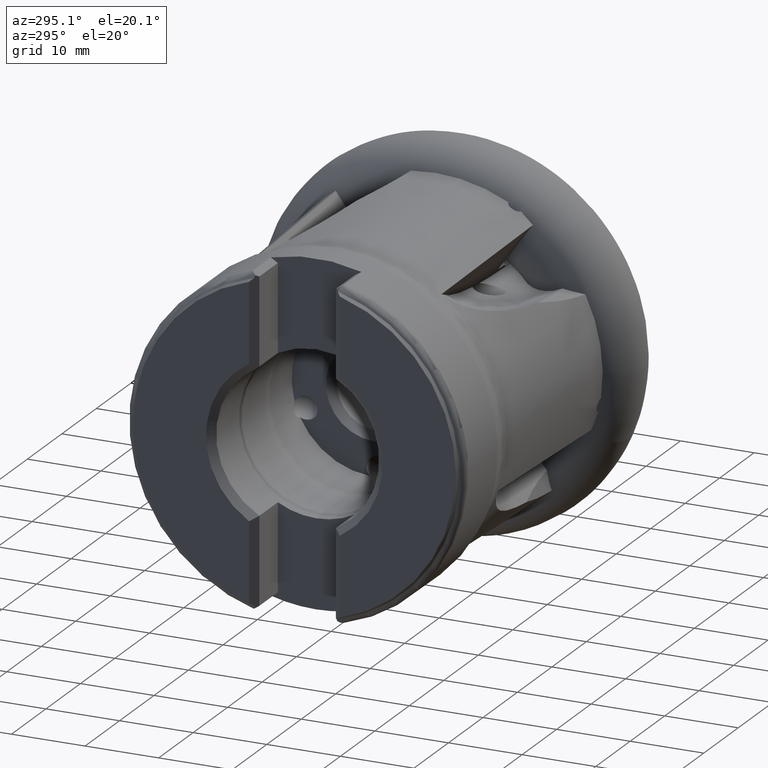
[diagram: clean part render]
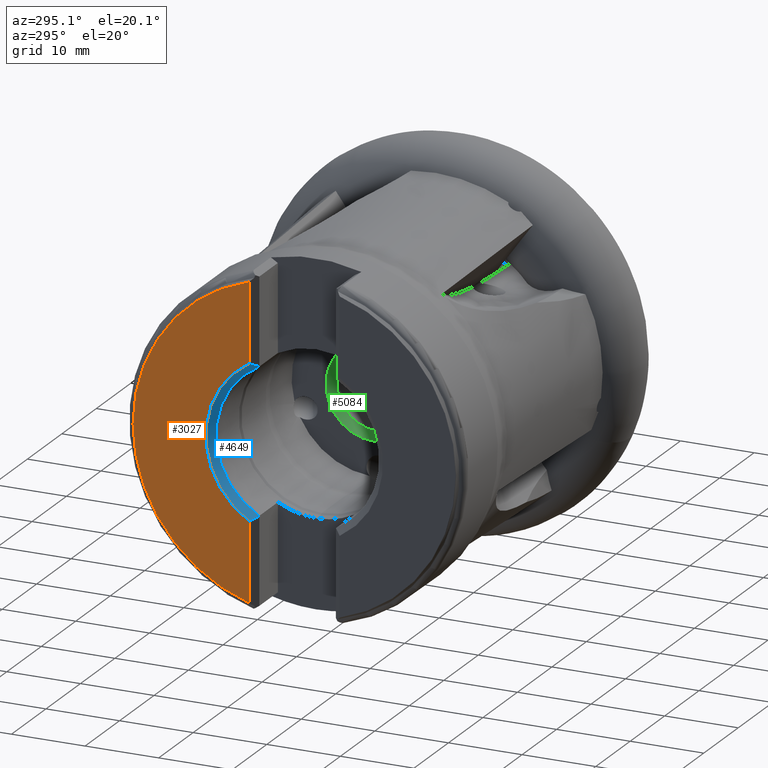
[diagram: same view with three faces highlighted in distinct colors, each labeled with its STEP entity id]
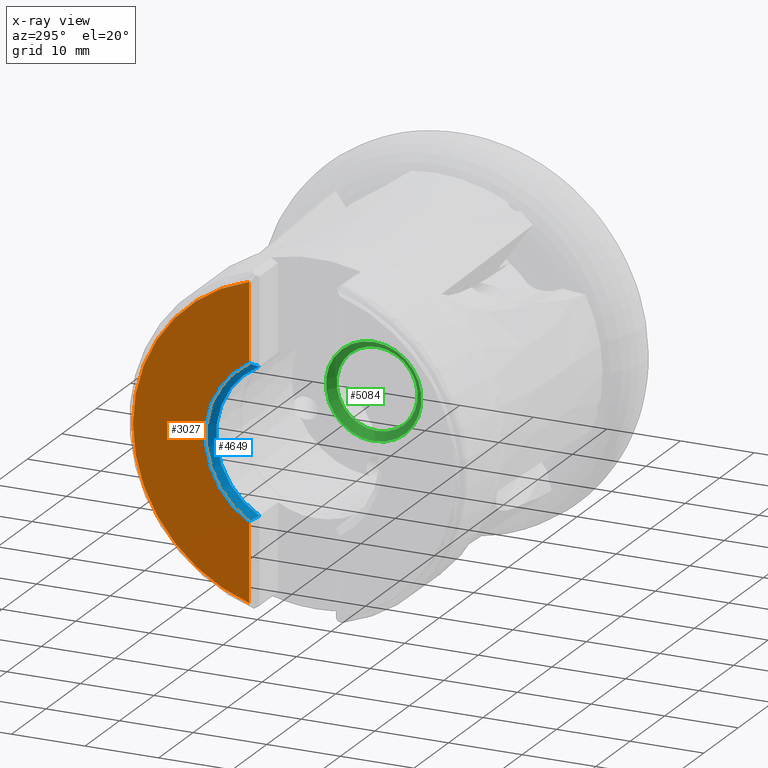
[diagram: x-ray of the same camera — body ghosted, the three highlighted faces saturated]
A machine part, auxiliary view with three faces highlighted in distinct colors.
The next image is the same camera in x-ray (body ghosted, the three faces saturated) — at least one of them is partly hidden behind the body in this view.
Their STEP definitions:

[orange] entity #3027 — the highlighted planar face has unit normal (1, 0, -0).
#241 = PLANE ( 'NONE',  #3022 ) ;
#437 = EDGE_CURVE ( 'NONE', #3511, #2054, #3896, .T. ) ;
#480 = VERTEX_POINT ( 'NONE', #2472 ) ;
#835 = EDGE_LOOP ( 'NONE', ( #4019, #2050, #2428, #1538 ) ) ;
#852 = CARTESIAN_POINT ( 'NONE',  ( -50.64099999999999800, -7.898033708983253300E-015, 0.0000000000000000000 ) ) ;
#1220 = DIRECTION ( 'NONE',  ( 0.0000000000000000000, 0.0000000000000000000, -1.000000000000000000 ) ) ;
#1470 = CARTESIAN_POINT ( 'NONE',  ( -50.64099999999999800, 6.150000000000013700, -30.00000000000000000 ) ) ;
#1538 = ORIENTED_EDGE ( 'NONE', *, *, #437, .F. ) ;
#1727 = CARTESIAN_POINT ( 'NONE',  ( -50.64099999999999800, 6.150000000000012800, -21.04196264864114600 ) ) ;
#2050 = ORIENTED_EDGE ( 'NONE', *, *, #4294, .F. ) ;
#2054 = VERTEX_POINT ( 'NONE', #1727 ) ;
#2091 = DIRECTION ( 'NONE',  ( -1.000000000000000000, 0.0000000000000000000, 0.0000000000000000000 ) ) ;
#2240 = EDGE_CURVE ( 'NONE', #480, #3511, #3275, .T. ) ;
#2267 = AXIS2_PLACEMENT_3D ( 'NONE', #4640, #3709, #2783 ) ;
#2362 = EDGE_CURVE ( 'NONE', #2545, #2054, #3985, .T. ) ;
#2428 = ORIENTED_EDGE ( 'NONE', *, *, #2362, .T. ) ;
#2472 = CARTESIAN_POINT ( 'NONE',  ( -50.64099999999999800, 6.150000000000013700, 10.33335013439494100 ) ) ;
#2522 = FACE_OUTER_BOUND ( 'NONE', #835, .T. ) ;
#2545 = VERTEX_POINT ( 'NONE', #2918 ) ;
#2652 = CARTESIAN_POINT ( 'NONE',  ( -50.64099999999999800, 0.0000000000000000000, 0.0000000000000000000 ) ) ;
#2657 = DIRECTION ( 'NONE',  ( 0.0000000000000000000, 0.0000000000000000000, -1.000000000000000000 ) ) ;
#2783 = DIRECTION ( 'NONE',  ( 0.0000000000000000000, 0.0000000000000000000, -1.000000000000000000 ) ) ;
#2881 = DIRECTION ( 'NONE',  ( -0.0000000000000000000, 0.0000000000000000000, -1.000000000000000000 ) ) ;
#2918 = CARTESIAN_POINT ( 'NONE',  ( -50.64099999999999800, 6.150000000000013700, 21.04196264864114600 ) ) ;
#3022 = AXIS2_PLACEMENT_3D ( 'NONE', #852, #3664, #2881 ) ;
#3027 = ADVANCED_FACE ( 'NONE', ( #2522 ), #241, .F. ) ;
#3205 = VECTOR ( 'NONE', #1220, 1000.000000000000000 ) ;
#3275 = CIRCLE ( 'NONE', #3296, 12.02500000000000400 ) ;
#3296 = AXIS2_PLACEMENT_3D ( 'NONE', #2652, #2091, #2657 ) ;
#3511 = VERTEX_POINT ( 'NONE', #4227 ) ;
#3664 = DIRECTION ( 'NONE',  ( 1.000000000000000000, 0.0000000000000000000, -0.0000000000000000000 ) ) ;
#3709 = DIRECTION ( 'NONE',  ( -1.000000000000000000, 0.0000000000000000000, 0.0000000000000000000 ) ) ;
#3896 = LINE ( 'NONE', #1470, #3205 ) ;
#3985 = CIRCLE ( 'NONE', #2267, 21.92228756555321900 ) ;
#4019 = ORIENTED_EDGE ( 'NONE', *, *, #2240, .F. ) ;
#4108 = DIRECTION ( 'NONE',  ( 0.0000000000000000000, 0.0000000000000000000, -1.000000000000000000 ) ) ;
#4227 = CARTESIAN_POINT ( 'NONE',  ( -50.64099999999999800, 6.150000000000012800, -10.33335013439494100 ) ) ;
#4294 = EDGE_CURVE ( 'NONE', #2545, #480, #4443, .T. ) ;
#4443 = LINE ( 'NONE', #4971, #4611 ) ;
#4611 = VECTOR ( 'NONE', #4108, 1000.000000000000000 ) ;
#4640 = CARTESIAN_POINT ( 'NONE',  ( -50.64099999999999800, 0.0000000000000000000, 0.0000000000000000000 ) ) ;
#4971 = CARTESIAN_POINT ( 'NONE',  ( -50.64099999999999800, 6.150000000000013700, -30.00000000000000000 ) ) ;

[blue] entity #4649 — the highlighted conical surface has half-angle 45 deg.
#10 = CARTESIAN_POINT ( 'NONE',  ( -49.69099999999999500, 0.0000000000000000000, 0.0000000000000000000 ) ) ;
#409 = DIRECTION ( 'NONE',  ( 1.000000000000000000, -0.0000000000000000000, -0.0000000000000000000 ) ) ;
#426 = ORIENTED_EDGE ( 'NONE', *, *, #2240, .T. ) ;
#480 = VERTEX_POINT ( 'NONE', #2472 ) ;
#515 = CARTESIAN_POINT ( 'NONE',  ( -50.32309013954434800, 5.832090139544361000, 10.15260328986867600 ) ) ;
#657 = DIRECTION ( 'NONE',  ( 0.0000000000000000000, 0.0000000000000000000, -1.000000000000000000 ) ) ;
#701 = CARTESIAN_POINT ( 'NONE',  ( -49.69099999999998800, 5.199999999999993100, 9.778324242936507800 ) ) ;
#1073 = CARTESIAN_POINT ( 'NONE',  ( -49.69099999999999500, 5.200000000000000200, -9.778324242936511400 ) ) ;
#1085 = CARTESIAN_POINT ( 'NONE',  ( -50.64099999999999800, 6.150000000000012800, -10.33335013439494100 ) ) ;
#1091 = CARTESIAN_POINT ( 'NONE',  ( -50.00636343124153900, 5.515363431241550700, -9.967800487793338600 ) ) ;
#1188 = CARTESIAN_POINT ( 'NONE',  ( -50.32309013954434800, 5.832090139544361800, -10.15260328986867600 ) ) ;
#1213 = B_SPLINE_CURVE_WITH_KNOTS ( 'NONE', 3,
 ( #1085, #1188, #1091, #1073 ),
 .UNSPECIFIED., .F., .F.,
 ( 4, 4 ),
 ( 7.649773688578097400E-005, 0.001530132222374792600 ),
 .UNSPECIFIED. ) ;
#1268 = CARTESIAN_POINT ( 'NONE',  ( -49.69099999999999500, 0.0000000000000000000, 0.0000000000000000000 ) ) ;
#1410 = CARTESIAN_POINT ( 'NONE',  ( -49.69099999999999500, 5.200000000000000200, -9.778324242936511400 ) ) ;
#1570 = B_SPLINE_CURVE_WITH_KNOTS ( 'NONE', 3,
 ( #701, #3247, #515, #2978 ),
 .UNSPECIFIED., .F., .F.,
 ( 4, 4 ),
 ( 3.072932524628260400E-007, 0.001453941778741487100 ),
 .UNSPECIFIED. ) ;
#1671 = ORIENTED_EDGE ( 'NONE', *, *, #3298, .T. ) ;
#1709 = DIRECTION ( 'NONE',  ( -1.000000000000000000, 0.0000000000000000000, 0.0000000000000000000 ) ) ;
#1910 = DIRECTION ( 'NONE',  ( 0.0000000000000000000, 0.0000000000000000000, 1.000000000000000000 ) ) ;
#2086 = EDGE_CURVE ( 'NONE', #3511, #3373, #1213, .T. ) ;
#2091 = DIRECTION ( 'NONE',  ( -1.000000000000000000, 0.0000000000000000000, 0.0000000000000000000 ) ) ;
#2093 = FACE_OUTER_BOUND ( 'NONE', #4203, .T. ) ;
#2240 = EDGE_CURVE ( 'NONE', #480, #3511, #3275, .T. ) ;
#2325 = AXIS2_PLACEMENT_3D ( 'NONE', #10, #1709, #1910 ) ;
#2472 = CARTESIAN_POINT ( 'NONE',  ( -50.64099999999999800, 6.150000000000013700, 10.33335013439494100 ) ) ;
#2518 = CIRCLE ( 'NONE', #3740, 11.07499999999999400 ) ;
#2534 = ORIENTED_EDGE ( 'NONE', *, *, #2907, .T. ) ;
#2547 = ORIENTED_EDGE ( 'NONE', *, *, #2086, .T. ) ;
#2652 = CARTESIAN_POINT ( 'NONE',  ( -50.64099999999999800, 0.0000000000000000000, 0.0000000000000000000 ) ) ;
#2657 = DIRECTION ( 'NONE',  ( 0.0000000000000000000, 0.0000000000000000000, -1.000000000000000000 ) ) ;
#2907 = EDGE_CURVE ( 'NONE', #3373, #4015, #2518, .T. ) ;
#2911 = CARTESIAN_POINT ( 'NONE',  ( -49.69099999999998800, 5.199999999999993100, 9.778324242936507800 ) ) ;
#2978 = CARTESIAN_POINT ( 'NONE',  ( -50.64099999999999800, 6.150000000000013700, 10.33335013439494100 ) ) ;
#3247 = CARTESIAN_POINT ( 'NONE',  ( -50.00636343124153200, 5.515363431241546300, 9.967800487793335100 ) ) ;
#3275 = CIRCLE ( 'NONE', #3296, 12.02500000000000400 ) ;
#3296 = AXIS2_PLACEMENT_3D ( 'NONE', #2652, #2091, #2657 ) ;
#3298 = EDGE_CURVE ( 'NONE', #4015, #480, #1570, .T. ) ;
#3373 = VERTEX_POINT ( 'NONE', #1410 ) ;
#3399 = CONICAL_SURFACE ( 'NONE', #2325, 11.07499999999999400, 0.7853981633974501700 ) ;
#3511 = VERTEX_POINT ( 'NONE', #4227 ) ;
#3740 = AXIS2_PLACEMENT_3D ( 'NONE', #1268, #409, #657 ) ;
#4015 = VERTEX_POINT ( 'NONE', #2911 ) ;
#4203 = EDGE_LOOP ( 'NONE', ( #1671, #426, #2547, #2534 ) ) ;
#4227 = CARTESIAN_POINT ( 'NONE',  ( -50.64099999999999800, 6.150000000000012800, -10.33335013439494100 ) ) ;
#4649 = ADVANCED_FACE ( 'NONE', ( #2093 ), #3399, .F. ) ;

[green] entity #5084 — the highlighted conical surface has half-angle 45 deg.
#326 = ORIENTED_EDGE ( 'NONE', *, *, #4205, .T. ) ;
#810 = EDGE_CURVE ( 'NONE', #1155, #1155, #2962, .T. ) ;
#917 = VERTEX_POINT ( 'NONE', #1976 ) ;
#1155 = VERTEX_POINT ( 'NONE', #5060 ) ;
#1216 = CONICAL_SURFACE ( 'NONE', #2974, 5.499999999999996400, 0.7853981633974501700 ) ;
#1299 = ORIENTED_EDGE ( 'NONE', *, *, #810, .F. ) ;
#1398 = FACE_OUTER_BOUND ( 'NONE', #1748, .T. ) ;
#1603 = FACE_BOUND ( 'NONE', #4279, .T. ) ;
#1748 = EDGE_LOOP ( 'NONE', ( #1299 ) ) ;
#1976 = CARTESIAN_POINT ( 'NONE',  ( -26.64099999999999100, 0.0000000000000000000, -5.499999999999996400 ) ) ;
#2962 = CIRCLE ( 'NONE', #4860, 6.500000000000000900 ) ;
#2974 = AXIS2_PLACEMENT_3D ( 'NONE', #3906, #3578, #3873 ) ;
#3337 = DIRECTION ( 'NONE',  ( 1.000000000000000000, -0.0000000000000000000, -0.0000000000000000000 ) ) ;
#3414 = CIRCLE ( 'NONE', #4899, 5.499999999999996400 ) ;
#3547 = DIRECTION ( 'NONE',  ( 0.0000000000000000000, 0.0000000000000000000, -1.000000000000000000 ) ) ;
#3578 = DIRECTION ( 'NONE',  ( -1.000000000000000000, 0.0000000000000000000, 0.0000000000000000000 ) ) ;
#3873 = DIRECTION ( 'NONE',  ( 0.0000000000000000000, 0.0000000000000000000, 1.000000000000000000 ) ) ;
#3906 = CARTESIAN_POINT ( 'NONE',  ( -26.64099999999999100, 0.0000000000000000000, 0.0000000000000000000 ) ) ;
#4205 = EDGE_CURVE ( 'NONE', #917, #917, #3414, .T. ) ;
#4279 = EDGE_LOOP ( 'NONE', ( #326 ) ) ;
#4618 = CARTESIAN_POINT ( 'NONE',  ( -26.64099999999999100, 0.0000000000000000000, 0.0000000000000000000 ) ) ;
#4733 = DIRECTION ( 'NONE',  ( 1.000000000000000000, -0.0000000000000000000, -0.0000000000000000000 ) ) ;
#4756 = DIRECTION ( 'NONE',  ( 0.0000000000000000000, 0.0000000000000000000, -1.000000000000000000 ) ) ;
#4860 = AXIS2_PLACEMENT_3D ( 'NONE', #5091, #3337, #3547 ) ;
#4899 = AXIS2_PLACEMENT_3D ( 'NONE', #4618, #4733, #4756 ) ;
#5060 = CARTESIAN_POINT ( 'NONE',  ( -27.64099999999999100, 0.0000000000000000000, -6.500000000000000900 ) ) ;
#5084 = ADVANCED_FACE ( 'NONE', ( #1398, #1603 ), #1216, .F. ) ;
#5091 = CARTESIAN_POINT ( 'NONE',  ( -27.64099999999999100, 0.0000000000000000000, 0.0000000000000000000 ) ) ;